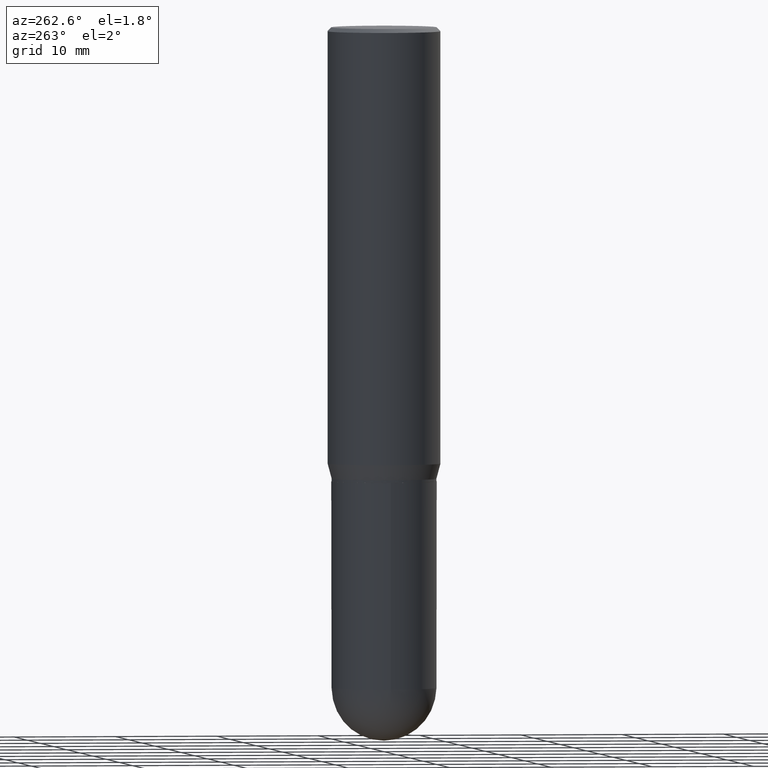
[diagram: clean part render]
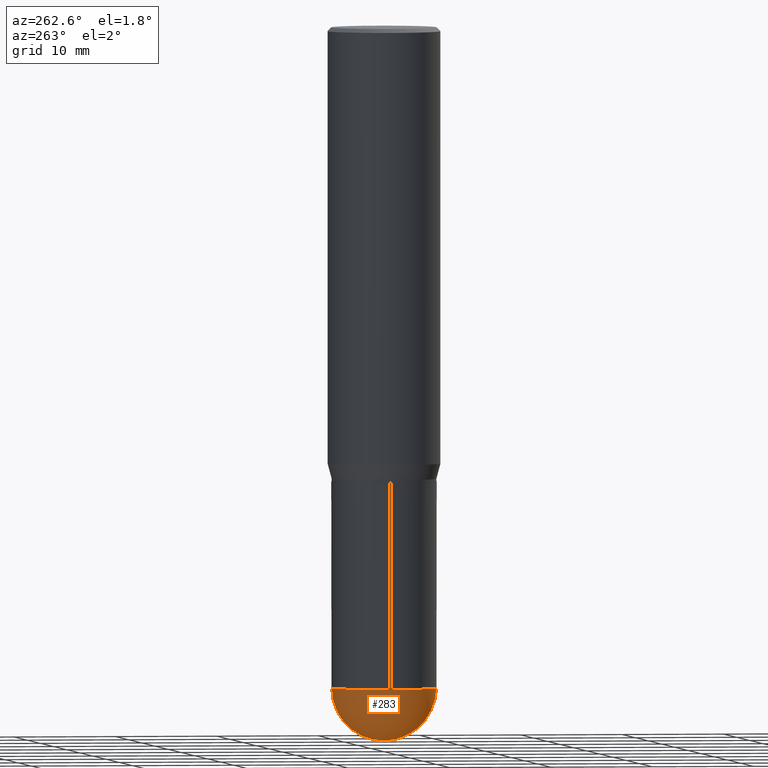
[diagram: same view with one face highlighted and labeled with its STEP entity id]
A machine part, auxiliary view. The second image highlights one B-rep face of the part: STEP entity #283.
In plain terms, the highlighted spherical surface has radius 5.1587 mm.
Its self-contained STEP definition (entity closure, byte-faithful):
#2 = ORIENTED_EDGE ( 'NONE', *, *, #405, .F. ) ;
#3 = CIRCLE ( 'NONE', #327, 0.2030999999999999472 ) ;
#6 = EDGE_CURVE ( 'NONE', #292, #410, #195, .T. ) ;
#22 = DIRECTION ( 'NONE',  ( -2.445468806185136597E-29, 3.491481338843145583E-15, 1.000000000000000000 ) ) ;
#28 = DIRECTION ( 'NONE',  ( -7.105427357601001070E-15, -1.000000000000000000, 0.000000000000000000 ) ) ;
#32 = DIRECTION ( 'NONE',  ( -2.445468806185136597E-29, 3.491481338843145583E-15, 1.000000000000000000 ) ) ;
#45 = CARTESIAN_POINT ( 'NONE',  ( -1.443112296328700980E-15, -0.2031000000000088845, -2.546899999999999498 ) ) ;
#58 = DIRECTION ( 'NONE',  ( 6.982962677686266711E-15, 1.000000000000000000, 0.000000000000000000 ) ) ;
#64 = ORIENTED_EDGE ( 'NONE', *, *, #6, .F. ) ;
#69 = CARTESIAN_POINT ( 'NONE',  ( -0.2031000000000000583, -6.058160786108791010E-15, -2.546899999999999942 ) ) ;
#94 = DIRECTION ( 'NONE',  ( -1.000000000000000000, 6.982962677686266711E-15, -4.883557194083112901E-29 ) ) ;
#102 = DIRECTION ( 'NONE',  ( 1.000000000000000000, -6.982962677686265922E-15, 4.883557194083112340E-29 ) ) ;
#119 = CIRCLE ( 'NONE', #337, 0.2031000000000000583 ) ;
#158 = EDGE_CURVE ( 'NONE', #410, #391, #306, .T. ) ;
#159 = DIRECTION ( 'NONE',  ( -1.000000000000000000, 7.105427357601001070E-15, -4.926315508542082329E-29 ) ) ;
#160 = DIRECTION ( 'NONE',  ( 6.982962677686266711E-15, 1.000000000000000000, -2.690150658458162309E-15 ) ) ;
#192 = ORIENTED_EDGE ( 'NONE', *, *, #433, .T. ) ;
#195 = CIRCLE ( 'NONE', #505, 0.2030999999999999472 ) ;
#205 = CARTESIAN_POINT ( 'NONE',  ( 6.210996075139691695E-29, -8.917326398390289827E-15, -2.546899999999999942 ) ) ;
#213 = CARTESIAN_POINT ( 'NONE',  ( 6.228364502472924746E-29, -8.892453821899607499E-15, -2.546899999999999942 ) ) ;
#229 = CARTESIAN_POINT ( 'NONE',  ( 6.228364502472924746E-29, -8.892453821899607499E-15, -2.546899999999999942 ) ) ;
#258 = DIRECTION ( 'NONE',  ( 1.000000000000000000, -6.982962677686262766E-15, 0.000000000000000000 ) ) ;
#283 = ADVANCED_FACE ( 'NONE', ( #339 ), #368, .T. ) ;
#284 = AXIS2_PLACEMENT_3D ( 'NONE', #213, #22, #258 ) ;
#292 = VERTEX_POINT ( 'NONE', #294 ) ;
#294 = CARTESIAN_POINT ( 'NONE',  ( 6.716355003342508555E-29, -9.614009970063991023E-15, -2.750000000000000000 ) ) ;
#306 = CIRCLE ( 'NONE', #284, 0.2031000000000000583 ) ;
#307 = AXIS2_PLACEMENT_3D ( 'NONE', #451, #94, #160 ) ;
#312 = DIRECTION ( 'NONE',  ( 1.000000000000000000, -6.982962677686262766E-15, 0.000000000000000000 ) ) ;
#327 = AXIS2_PLACEMENT_3D ( 'NONE', #205, #159, #28 ) ;
#329 = EDGE_LOOP ( 'NONE', ( #64, #192, #2, #336 ) ) ;
#336 = ORIENTED_EDGE ( 'NONE', *, *, #158, .F. ) ;
#337 = AXIS2_PLACEMENT_3D ( 'NONE', #229, #32, #312 ) ;
#339 = FACE_OUTER_BOUND ( 'NONE', #329, .T. ) ;
#368 = SPHERICAL_SURFACE ( 'NONE', #307, 0.2030999999999999472 ) ;
#391 = VERTEX_POINT ( 'NONE', #69 ) ;
#405 = EDGE_CURVE ( 'NONE', #391, #442, #119, .T. ) ;
#410 = VERTEX_POINT ( 'NONE', #465 ) ;
#433 = EDGE_CURVE ( 'NONE', #292, #442, #3, .T. ) ;
#442 = VERTEX_POINT ( 'NONE', #45 ) ;
#451 = CARTESIAN_POINT ( 'NONE',  ( 6.210996075139691695E-29, -8.917326398390289827E-15, -2.546899999999999942 ) ) ;
#458 = CARTESIAN_POINT ( 'NONE',  ( 6.210996075139691695E-29, -8.917326398390289827E-15, -2.546899999999999942 ) ) ;
#465 = CARTESIAN_POINT ( 'NONE',  ( 1.418239719838142898E-15, 0.2030999999999910932, -2.546900000000000830 ) ) ;
#505 = AXIS2_PLACEMENT_3D ( 'NONE', #458, #102, #58 ) ;